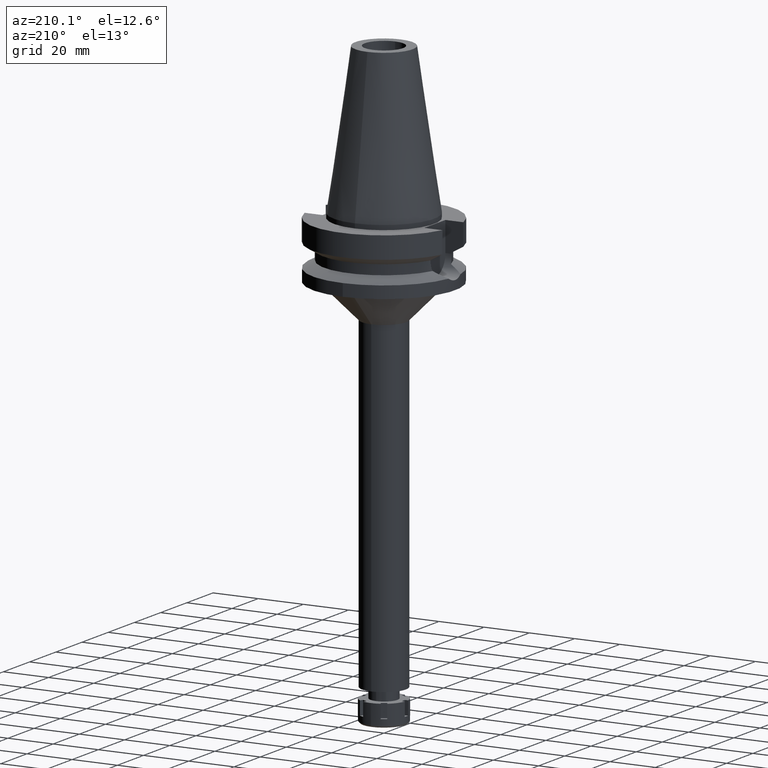
[diagram: clean part render]
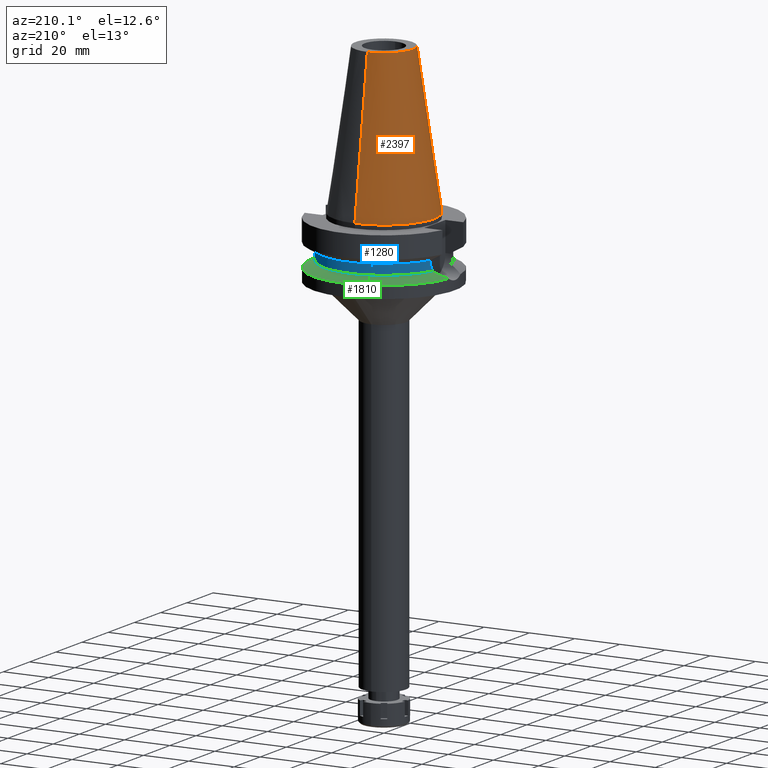
[diagram: same view with three faces highlighted in distinct colors, each labeled with its STEP entity id]
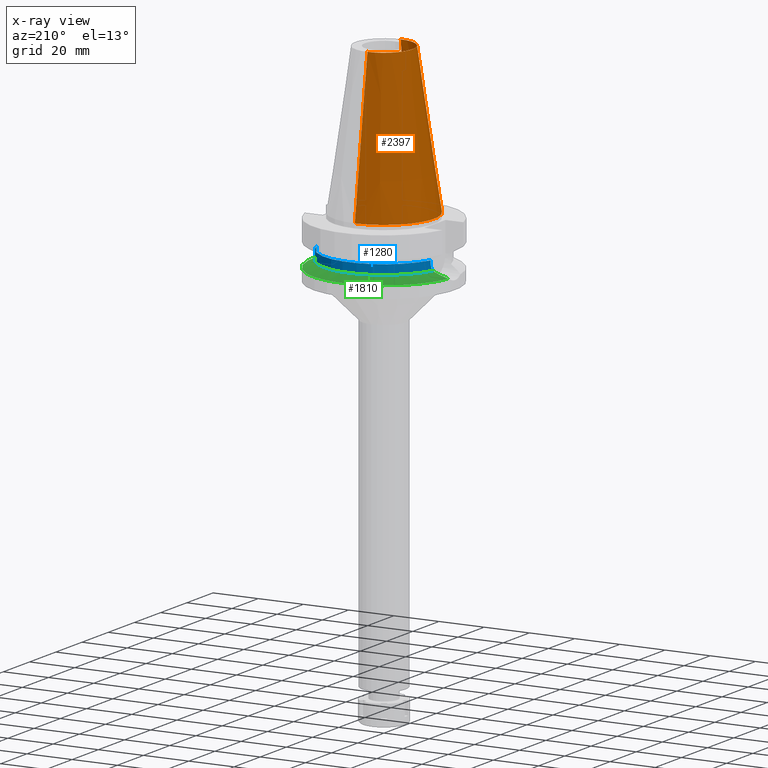
[diagram: x-ray of the same camera — body ghosted, the three highlighted faces saturated]
A machine part, auxiliary view with three faces highlighted in distinct colors.
The next image is the same camera in x-ray (body ghosted, the three faces saturated) — at least one of them is partly hidden behind the body in this view.
Their STEP definitions:

[orange] entity #2397 — the highlighted conical surface has half-angle 8.297 deg.
#241 = CIRCLE ( 'NONE', #3118, 22.22500000000000142 ) ;
#265 = DIRECTION ( 'NONE',  ( 0.0000000000000000000, -0.1443043893539925626, -0.9895333461855498891 ) ) ;
#284 = CARTESIAN_POINT ( 'NONE',  ( 0.0000000000000000000, -12.68766899429999917, 65.40000000000000568 ) ) ;
#333 = CARTESIAN_POINT ( 'NONE',  ( 0.0000000000000000000, -22.22500000000000142, 1.136868377215999875E-13 ) ) ;
#500 = EDGE_CURVE ( 'NONE', #2946, #3536, #241, .T. ) ;
#537 = CARTESIAN_POINT ( 'NONE',  ( 0.0000000000000000000, 1.625106302469000024E-14, 65.40000000000000568 ) ) ;
#693 = CARTESIAN_POINT ( 'NONE',  ( 0.0000000000000000000, -12.68766899429999917, 65.40000000000000568 ) ) ;
#817 = DIRECTION ( 'NONE',  ( 0.0000000000000000000, 0.0000000000000000000, -1.000000000000000000 ) ) ;
#864 = FACE_OUTER_BOUND ( 'NONE', #1016, .T. ) ;
#917 = DIRECTION ( 'NONE',  ( 0.0000000000000000000, 0.0000000000000000000, -1.000000000000000000 ) ) ;
#958 = CARTESIAN_POINT ( 'NONE',  ( 0.0000000000000000000, 12.68766899429999917, 65.40000000000000568 ) ) ;
#1016 = EDGE_LOOP ( 'NONE', ( #1564, #3081, #3021, #2897 ) ) ;
#1219 = VECTOR ( 'NONE', #265, 1000.000000000000114 ) ;
#1279 = AXIS2_PLACEMENT_3D ( 'NONE', #537, #817, #3012 ) ;
#1329 = VERTEX_POINT ( 'NONE', #693 ) ;
#1330 = LINE ( 'NONE', #284, #1219 ) ;
#1366 = EDGE_CURVE ( 'NONE', #1329, #1722, #1576, .T. ) ;
#1501 = EDGE_CURVE ( 'NONE', #1329, #2946, #1330, .T. ) ;
#1516 = EDGE_CURVE ( 'NONE', #1722, #3536, #2499, .T. ) ;
#1564 = ORIENTED_EDGE ( 'NONE', *, *, #500, .F. ) ;
#1576 = CIRCLE ( 'NONE', #1279, 12.68766899429999917 ) ;
#1595 = CARTESIAN_POINT ( 'NONE',  ( 0.0000000000000000000, 22.22500000000000142, 8.526512829120999020E-14 ) ) ;
#1687 = CARTESIAN_POINT ( 'NONE',  ( 0.0000000000000000000, 1.625106302469000024E-14, 1.136868377215999875E-13 ) ) ;
#1722 = VERTEX_POINT ( 'NONE', #958 ) ;
#2303 = CARTESIAN_POINT ( 'NONE',  ( 0.0000000000000000000, 1.625106302469000024E-14, 32.70000000000000284 ) ) ;
#2397 = ADVANCED_FACE ( 'NONE', ( #864 ), #2635, .T. ) ;
#2451 = VECTOR ( 'NONE', #3625, 1000.000000000000114 ) ;
#2499 = LINE ( 'NONE', #3571, #2451 ) ;
#2635 = CONICAL_SURFACE ( 'NONE', #3631, 17.45633449714999941, 0.1448099680379422438 ) ;
#2775 = DIRECTION ( 'NONE',  ( 0.0000000000000000000, 0.0000000000000000000, -1.000000000000000000 ) ) ;
#2897 = ORIENTED_EDGE ( 'NONE', *, *, #1516, .T. ) ;
#2946 = VERTEX_POINT ( 'NONE', #333 ) ;
#3012 = DIRECTION ( 'NONE',  ( 0.0000000000000000000, -1.000000000000000000, 0.0000000000000000000 ) ) ;
#3021 = ORIENTED_EDGE ( 'NONE', *, *, #1366, .T. ) ;
#3051 = DIRECTION ( 'NONE',  ( 0.0000000000000000000, -1.000000000000000000, 0.0000000000000000000 ) ) ;
#3081 = ORIENTED_EDGE ( 'NONE', *, *, #1501, .F. ) ;
#3118 = AXIS2_PLACEMENT_3D ( 'NONE', #1687, #2775, #3051 ) ;
#3159 = DIRECTION ( 'NONE',  ( 0.0000000000000000000, -1.000000000000000000, 0.0000000000000000000 ) ) ;
#3536 = VERTEX_POINT ( 'NONE', #1595 ) ;
#3571 = CARTESIAN_POINT ( 'NONE',  ( 0.0000000000000000000, 12.68766899429999917, 65.40000000000000568 ) ) ;
#3625 = DIRECTION ( 'NONE',  ( 0.0000000000000000000, 0.1443043893539925626, -0.9895333461855498891 ) ) ;
#3631 = AXIS2_PLACEMENT_3D ( 'NONE', #2303, #917, #3159 ) ;

[blue] entity #1280 — the highlighted cylindrical surface (partial cylindrical patch) has radius 26.5 mm, axis along (0, 0, -1).
#12 = DIRECTION ( 'NONE',  ( 0.0000000000000000000, 0.0000000000000000000, 1.000000000000000000 ) ) ;
#18 = CARTESIAN_POINT ( 'NONE',  ( -25.31954463780457942, 7.821394976198594584, -16.85491936549410852 ) ) ;
#35 = CARTESIAN_POINT ( 'NONE',  ( -25.25396593744603990, 8.030896968456877616, -15.59377931114947025 ) ) ;
#102 = AXIS2_PLACEMENT_3D ( 'NONE', #118, #3231, #1848 ) ;
#118 = CARTESIAN_POINT ( 'NONE',  ( 0.0000000000000000000, 2.185014819038999686E-14, 78.42000000000000171 ) ) ;
#156 = CARTESIAN_POINT ( 'NONE',  ( 25.27269246206562414, 7.973290322419562592, -16.24535685341754387 ) ) ;
#179 = CARTESIAN_POINT ( 'NONE',  ( 25.24772266957999989, 8.050000000000000711, -15.58999073686770664 ) ) ;
#246 = LINE ( 'NONE', #1917, #1636 ) ;
#276 = EDGE_CURVE ( 'NONE', #1257, #1284, #1110, .T. ) ;
#285 = ORIENTED_EDGE ( 'NONE', *, *, #2856, .F. ) ;
#294 = CARTESIAN_POINT ( 'NONE',  ( -25.43788636140667947, 7.435506143574370341, -18.11669712823316658 ) ) ;
#316 = ORIENTED_EDGE ( 'NONE', *, *, #1136, .T. ) ;
#411 = B_SPLINE_CURVE_WITH_KNOTS ( 'NONE', 3,
 ( #625, #1444, #35, #1113, #1149, #1990, #1740, #1130, #3121, #18, #2224, #2254, #294, #3428 ),
 .UNSPECIFIED., .F., .F.,
 ( 4, 2, 2, 1, 1, 2, 2, 4 ),
 ( 0.0000000000000000000, 0.2499999999999952260, 0.3749999999999935052, 0.4374999999999927280, 0.4687499999999922839, 0.4843749999999933942, 0.4999999999999945599, 1.000000000000000000 ),
 .UNSPECIFIED. ) ;
#445 = CARTESIAN_POINT ( 'NONE',  ( 25.33292553852030693, 7.777985707517056646, -17.02558215515331952 ) ) ;
#446 = EDGE_CURVE ( 'NONE', #528, #1284, #3615, .T. ) ;
#488 = CARTESIAN_POINT ( 'NONE',  ( 25.44392473217580530, 7.408251102513793818, -18.11706870842442285 ) ) ;
#528 = VERTEX_POINT ( 'NONE', #1674 ) ;
#531 = VERTEX_POINT ( 'NONE', #1222 ) ;
#625 = CARTESIAN_POINT ( 'NONE',  ( -25.24772266958000344, 8.050000000000000711, -14.94999999999999929 ) ) ;
#696 = CARTESIAN_POINT ( 'NONE',  ( 25.32844325893327664, 7.792538688759439225, -16.96970524096579425 ) ) ;
#703 = CARTESIAN_POINT ( 'NONE',  ( 0.0000000000000000000, 1.065333950388000029E-14, -14.45225699861000024 ) ) ;
#831 = EDGE_CURVE ( 'NONE', #531, #528, #3042, .T. ) ;
#918 = ORIENTED_EDGE ( 'NONE', *, *, #276, .T. ) ;
#1009 = ORIENTED_EDGE ( 'NONE', *, *, #446, .F. ) ;
#1110 = CIRCLE ( 'NONE', #1593, 26.50000000000000711 ) ;
#1113 = CARTESIAN_POINT ( 'NONE',  ( -25.27269574104415994, 7.971769475022838947, -16.08146184953483271 ) ) ;
#1130 = CARTESIAN_POINT ( 'NONE',  ( -25.31205759391836096, 7.845621557329947038, -16.75326793494481237 ) ) ;
#1136 = EDGE_CURVE ( 'NONE', #531, #3185, #2502, .T. ) ;
#1149 = CARTESIAN_POINT ( 'NONE',  ( -25.28049982587671352, 7.946985634402506271, -16.24435369772021076 ) ) ;
#1177 = DIRECTION ( 'NONE',  ( 0.0000000000000000000, 1.000000000000000000, 0.0000000000000000000 ) ) ;
#1222 = CARTESIAN_POINT ( 'NONE',  ( 25.53175183775000079, 7.097862220092999941, -18.74774300138999905 ) ) ;
#1257 = VERTEX_POINT ( 'NONE', #2636 ) ;
#1273 = VERTEX_POINT ( 'NONE', #2676 ) ;
#1280 = ADVANCED_FACE ( 'NONE', ( #2353 ), #3484, .T. ) ;
#1282 = CARTESIAN_POINT ( 'NONE',  ( 25.24772266958000344, 8.050000000000000711, -14.94999999999999929 ) ) ;
#1284 = VERTEX_POINT ( 'NONE', #3208 ) ;
#1406 = EDGE_CURVE ( 'NONE', #1257, #1273, #246, .T. ) ;
#1444 = CARTESIAN_POINT ( 'NONE',  ( -25.24772266957999634, 8.050000000000013145, -15.27000127552675401 ) ) ;
#1593 = AXIS2_PLACEMENT_3D ( 'NONE', #703, #3019, #2439 ) ;
#1598 = CARTESIAN_POINT ( 'NONE',  ( 25.35411833098890355, 7.708843546315534034, -17.27003765536262136 ) ) ;
#1636 = VECTOR ( 'NONE', #3556, 1000.000000000000114 ) ;
#1674 = CARTESIAN_POINT ( 'NONE',  ( 25.24772266958000344, 8.050000000000000711, -14.94999999999999929 ) ) ;
#1740 = CARTESIAN_POINT ( 'NONE',  ( -25.30215616128706202, 7.877576232114821053, -16.61085564858947095 ) ) ;
#1848 = DIRECTION ( 'NONE',  ( 0.0000000000000000000, -1.000000000000000000, 0.0000000000000000000 ) ) ;
#1917 = CARTESIAN_POINT ( 'NONE',  ( -25.24772216375000156, 8.050001586471001502, -14.45224487658000001 ) ) ;
#1941 = DIRECTION ( 'NONE',  ( 2.936344683098950112E-06, -9.209448786821828654E-06, 0.9999999999532819261 ) ) ;
#1953 = ORIENTED_EDGE ( 'NONE', *, *, #831, .F. ) ;
#1990 = CARTESIAN_POINT ( 'NONE',  ( -25.29454717857531065, 7.902012029789332814, -16.48868902742409048 ) ) ;
#2096 = EDGE_LOOP ( 'NONE', ( #918, #1009, #1953, #316, #285, #2360 ) ) ;
#2153 = CARTESIAN_POINT ( 'NONE',  ( 25.48481820018459132, 7.266687417048629527, -18.43221401829459083 ) ) ;
#2189 = CARTESIAN_POINT ( 'NONE',  ( 25.24772266958000344, 8.050000000000000711, -14.94999999999999929 ) ) ;
#2224 = CARTESIAN_POINT ( 'NONE',  ( -25.32121872273786423, 7.815971166074344723, -16.87703378351201522 ) ) ;
#2254 = CARTESIAN_POINT ( 'NONE',  ( -25.36818304348085107, 7.663708172131618923, -17.48836484279771142 ) ) ;
#2353 = FACE_OUTER_BOUND ( 'NONE', #2096, .T. ) ;
#2360 = ORIENTED_EDGE ( 'NONE', *, *, #1406, .F. ) ;
#2439 = DIRECTION ( 'NONE',  ( -0.9527442516822307583, 0.3037735849057093818, 0.0000000000000000000 ) ) ;
#2484 = CARTESIAN_POINT ( 'NONE',  ( -25.53175183775000079, 7.097862220092999941, -18.74774300138999905 ) ) ;
#2502 = CIRCLE ( 'NONE', #3624, 26.50000000000000000 ) ;
#2555 = CARTESIAN_POINT ( 'NONE',  ( 0.0000000000000000000, 0.0000000000000000000, -18.74774300138999905 ) ) ;
#2636 = CARTESIAN_POINT ( 'NONE',  ( -25.24772216375000156, 8.050001586471001502, -14.45224487658000001 ) ) ;
#2676 = CARTESIAN_POINT ( 'NONE',  ( -25.24772266958000344, 8.050000000000000711, -14.94999999999999929 ) ) ;
#2718 = CARTESIAN_POINT ( 'NONE',  ( 25.32419265906722927, 7.806329682139820036, -16.91574545217583392 ) ) ;
#2856 = EDGE_CURVE ( 'NONE', #1273, #3185, #411, .T. ) ;
#3019 = DIRECTION ( 'NONE',  ( 0.0000000000000000000, 0.0000000000000000000, -1.000000000000000000 ) ) ;
#3042 = B_SPLINE_CURVE_WITH_KNOTS ( 'NONE', 3,
 ( #3488, #2153, #488, #3507, #3286, #1598, #3212, #445, #696, #3524, #2718, #156, #179, #1282 ),
 .UNSPECIFIED., .F., .F.,
 ( 4, 2, 2, 1, 1, 2, 2, 4 ),
 ( 0.0000000000000000000, 0.2500000000000158207, 0.3750000000000225930, 0.4375000000000273670, 0.4687500000000284772, 0.4843750000000276446, 0.5000000000000267564, 1.000000000000000000 ),
 .UNSPECIFIED. ) ;
#3121 = CARTESIAN_POINT ( 'NONE',  ( -25.31652055493196940, 7.831184758220314457, -16.81426458566293292 ) ) ;
#3185 = VERTEX_POINT ( 'NONE', #2484 ) ;
#3208 = CARTESIAN_POINT ( 'NONE',  ( 25.24772413102000002, 8.049995416383998403, -14.45229202342000008 ) ) ;
#3212 = CARTESIAN_POINT ( 'NONE',  ( 25.34387967354898663, 7.742345491372086386, -17.15662736176078695 ) ) ;
#3231 = DIRECTION ( 'NONE',  ( 0.0000000000000000000, 0.0000000000000000000, -1.000000000000000000 ) ) ;
#3286 = CARTESIAN_POINT ( 'NONE',  ( 25.37572817766058364, 7.637723572221805313, -17.49814693646417751 ) ) ;
#3428 = CARTESIAN_POINT ( 'NONE',  ( -25.53175183775000079, 7.097862220092999941, -18.74774300138999905 ) ) ;
#3484 = CYLINDRICAL_SURFACE ( 'NONE', #102, 26.50000000000000000 ) ;
#3488 = CARTESIAN_POINT ( 'NONE',  ( 25.53175183775000079, 7.097862220092999941, -18.74774300138999905 ) ) ;
#3507 = CARTESIAN_POINT ( 'NONE',  ( 25.39164478449751527, 7.584820969894079390, -17.65194245036779108 ) ) ;
#3524 = CARTESIAN_POINT ( 'NONE',  ( 25.32550226136657301, 7.802082245156339191, -16.93251888162851770 ) ) ;
#3556 = DIRECTION ( 'NONE',  ( -1.016224662221004237E-06, -3.187251308830015568E-06, -0.9999999999944043649 ) ) ;
#3588 = VECTOR ( 'NONE', #1941, 1000.000000000000114 ) ;
#3615 = LINE ( 'NONE', #2189, #3588 ) ;
#3624 = AXIS2_PLACEMENT_3D ( 'NONE', #2555, #12, #1177 ) ;

[green] entity #1810 — the highlighted conical surface has half-angle 60 deg.
#12 = DIRECTION ( 'NONE',  ( 0.0000000000000000000, 0.0000000000000000000, 1.000000000000000000 ) ) ;
#30 = ORIENTED_EDGE ( 'NONE', *, *, #1136, .F. ) ;
#31 = AXIS2_PLACEMENT_3D ( 'NONE', #2916, #708, #2970 ) ;
#67 = CIRCLE ( 'NONE', #668, 31.50000000000000000 ) ;
#71 = ORIENTED_EDGE ( 'NONE', *, *, #183, .F. ) ;
#111 = CARTESIAN_POINT ( 'NONE',  ( -30.52225847107825629, 4.983784513425696616, -21.30015182438870980 ) ) ;
#124 = CARTESIAN_POINT ( 'NONE',  ( 29.20865667177308467, 5.705311041084495827, -20.62972070292712701 ) ) ;
#183 = EDGE_CURVE ( 'NONE', #3185, #1338, #2157, .T. ) ;
#395 = CARTESIAN_POINT ( 'NONE',  ( -28.34453244528697624, 6.120462200403409270, -20.18891023497513615 ) ) ;
#531 = VERTEX_POINT ( 'NONE', #1222 ) ;
#566 = CARTESIAN_POINT ( 'NONE',  ( 27.72391220754257191, 6.398344249187278621, -19.87124366014733567 ) ) ;
#574 = CARTESIAN_POINT ( 'NONE',  ( 0.0000000000000000000, 0.0000000000000000000, -21.63449434733000132 ) ) ;
#668 = AXIS2_PLACEMENT_3D ( 'NONE', #574, #1686, #1816 ) ;
#698 = CARTESIAN_POINT ( 'NONE',  ( 25.53175183775000079, 7.097862220092999941, -18.74774300138999905 ) ) ;
#708 = DIRECTION ( 'NONE',  ( 0.0000000000000000000, 0.0000000000000000000, -1.000000000000000000 ) ) ;
#916 = CARTESIAN_POINT ( 'NONE',  ( -27.84230066775740298, 6.332161714569301658, -19.93244802795479487 ) ) ;
#950 = CARTESIAN_POINT ( 'NONE',  ( 28.64872714483567862, 5.975855640175603334, -20.34368665209715843 ) ) ;
#988 = EDGE_LOOP ( 'NONE', ( #30, #2589, #2619, #2515, #71 ) ) ;
#1136 = EDGE_CURVE ( 'NONE', #531, #3185, #2502, .T. ) ;
#1177 = DIRECTION ( 'NONE',  ( 0.0000000000000000000, 1.000000000000000000, 0.0000000000000000000 ) ) ;
#1222 = CARTESIAN_POINT ( 'NONE',  ( 25.53175183775000079, 7.097862220092999941, -18.74774300138999905 ) ) ;
#1223 = CARTESIAN_POINT ( 'NONE',  ( 29.56060249283818209, 5.522538557729196995, -20.80946014864110083 ) ) ;
#1239 = DIRECTION ( 'NONE',  ( 0.0000000000000000000, 0.0000000000000000000, -1.000000000000000000 ) ) ;
#1244 = CARTESIAN_POINT ( 'NONE',  ( 28.60919412508501125, 5.994007340330181677, -20.32349099818662808 ) ) ;
#1301 = EDGE_CURVE ( 'NONE', #1338, #1596, #2933, .T. ) ;
#1338 = VERTEX_POINT ( 'NONE', #1557 ) ;
#1557 = CARTESIAN_POINT ( 'NONE',  ( -31.17899877608999759, 4.485536235554000051, -21.63449434733000132 ) ) ;
#1596 = VERTEX_POINT ( 'NONE', #3092 ) ;
#1639 = CONICAL_SURFACE ( 'NONE', #31, 29.00000000000000000, 1.047197551196400456 ) ;
#1686 = DIRECTION ( 'NONE',  ( 0.0000000000000000000, 0.0000000000000000000, -1.000000000000000000 ) ) ;
#1720 = CARTESIAN_POINT ( 'NONE',  ( 26.70338227811778964, 6.775801088733721222, -19.34966512618454715 ) ) ;
#1790 = FACE_OUTER_BOUND ( 'NONE', #988, .T. ) ;
#1795 = CARTESIAN_POINT ( 'NONE',  ( 31.17899877608999759, 4.485536235554000051, -21.63449434733000132 ) ) ;
#1799 = CARTESIAN_POINT ( 'NONE',  ( 28.62501855903111192, 5.986750389998425348, -20.33157498055900092 ) ) ;
#1810 = ADVANCED_FACE ( 'NONE', ( #1790 ), #1639, .T. ) ;
#1816 = DIRECTION ( 'NONE',  ( 0.0000000000000000000, 1.000000000000000000, 0.0000000000000000000 ) ) ;
#1946 = CARTESIAN_POINT ( 'NONE',  ( 28.60013404335625964, 5.998152692121670349, -20.31886263060604847 ) ) ;
#2006 = CARTESIAN_POINT ( 'NONE',  ( 31.17899877608999759, 4.485536235554000051, -21.63449434733000132 ) ) ;
#2033 = CARTESIAN_POINT ( 'NONE',  ( -31.17899877608999759, 4.485536235554000051, -21.63449434733000132 ) ) ;
#2157 = B_SPLINE_CURVE_WITH_KNOTS ( 'NONE', 3,
 ( #2283, #2302, #2910, #916, #395, #2627, #111, #2033 ),
 .UNSPECIFIED., .F., .F.,
 ( 4, 2, 2, 4 ),
 ( 0.0000000000000000000, 0.2500000000000000000, 0.5000000000000000000, 1.000000000000000000 ),
 .UNSPECIFIED. ) ;
#2187 = EDGE_CURVE ( 'NONE', #3394, #531, #3205, .T. ) ;
#2258 = AXIS2_PLACEMENT_3D ( 'NONE', #2974, #1239, #3187 ) ;
#2283 = CARTESIAN_POINT ( 'NONE',  ( -25.53175183775000079, 7.097862220092999941, -18.74774300138999905 ) ) ;
#2302 = CARTESIAN_POINT ( 'NONE',  ( -26.16236228668316954, 6.924518213628261698, -19.07171749732095023 ) ) ;
#2337 = CARTESIAN_POINT ( 'NONE',  ( 28.70385072257778702, 5.950369582603953766, -20.37184705671427665 ) ) ;
#2356 = CARTESIAN_POINT ( 'NONE',  ( 29.02909142657717467, 5.795669325796650284, -20.53799947803775083 ) ) ;
#2484 = CARTESIAN_POINT ( 'NONE',  ( -25.53175183775000079, 7.097862220092999941, -18.74774300138999905 ) ) ;
#2502 = CIRCLE ( 'NONE', #3624, 26.50000000000000000 ) ;
#2515 = ORIENTED_EDGE ( 'NONE', *, *, #1301, .F. ) ;
#2555 = CARTESIAN_POINT ( 'NONE',  ( 0.0000000000000000000, 0.0000000000000000000, -18.74774300138999905 ) ) ;
#2589 = ORIENTED_EDGE ( 'NONE', *, *, #2187, .F. ) ;
#2619 = ORIENTED_EDGE ( 'NONE', *, *, #3366, .F. ) ;
#2621 = CARTESIAN_POINT ( 'NONE',  ( 30.43206776862900753, 5.017288034154196552, -21.25413030092306599 ) ) ;
#2627 = CARTESIAN_POINT ( 'NONE',  ( -29.73154935025104351, 5.463287802344743760, -20.89726309957170969 ) ) ;
#2641 = CARTESIAN_POINT ( 'NONE',  ( 29.78565348111260391, 5.397949999617012828, -20.92434685290412943 ) ) ;
#2850 = CARTESIAN_POINT ( 'NONE',  ( 28.81331205485440705, 5.899139930731779558, -20.42776684198700110 ) ) ;
#2910 = CARTESIAN_POINT ( 'NONE',  ( -26.75059414247129652, 6.734487972413319312, -19.37354293300609953 ) ) ;
#2916 = CARTESIAN_POINT ( 'NONE',  ( 0.0000000000000000000, 0.0000000000000000000, -20.19111867435999841 ) ) ;
#2933 = CIRCLE ( 'NONE', #2258, 31.50000000000001421 ) ;
#2970 = DIRECTION ( 'NONE',  ( 0.0000000000000000000, -1.000000000000000000, 0.0000000000000000000 ) ) ;
#2974 = CARTESIAN_POINT ( 'NONE',  ( 0.0000000000000000000, 0.0000000000000000000, -21.63449434733000132 ) ) ;
#3092 = CARTESIAN_POINT ( 'NONE',  ( 0.0000000000000000000, 31.50000000000000000, -21.63449434733000132 ) ) ;
#3133 = CARTESIAN_POINT ( 'NONE',  ( 30.82469239056408128, 4.754337381272444318, -21.45411910627119667 ) ) ;
#3185 = VERTEX_POINT ( 'NONE', #2484 ) ;
#3187 = DIRECTION ( 'NONE',  ( -0.9898094849552905306, 0.1423979757318985240, 0.0000000000000000000 ) ) ;
#3205 = B_SPLINE_CURVE_WITH_KNOTS ( 'NONE', 3,
 ( #2006, #3133, #2621, #2641, #1223, #124, #2356, #2850, #2337, #950, #1799, #1244, #1946, #566, #1720, #698 ),
 .UNSPECIFIED., .F., .F.,
 ( 4, 2, 2, 1, 1, 1, 1, 2, 2, 4 ),
 ( 0.0000000000000000000, 0.2499999999999550360, 0.3749999999999328870, 0.4374999999999215627, 0.4687499999999159006, 0.4843749999999122924, 0.4921874999999114042, 0.4960937499999110156, 0.4999999999999105160, 1.000000000000000000 ),
 .UNSPECIFIED. ) ;
#3366 = EDGE_CURVE ( 'NONE', #1596, #3394, #67, .T. ) ;
#3394 = VERTEX_POINT ( 'NONE', #1795 ) ;
#3624 = AXIS2_PLACEMENT_3D ( 'NONE', #2555, #12, #1177 ) ;